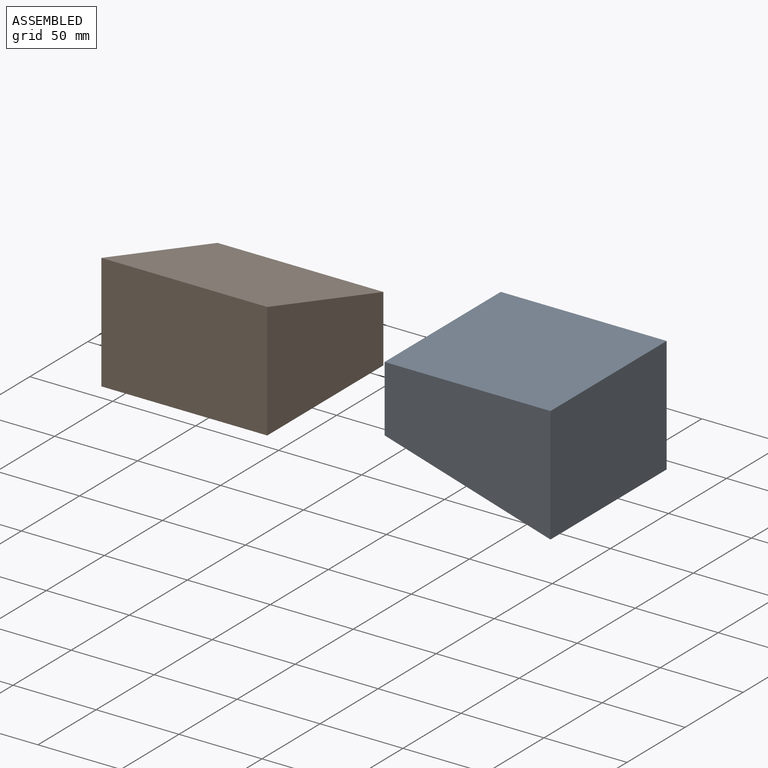
[diagram: assembled view]
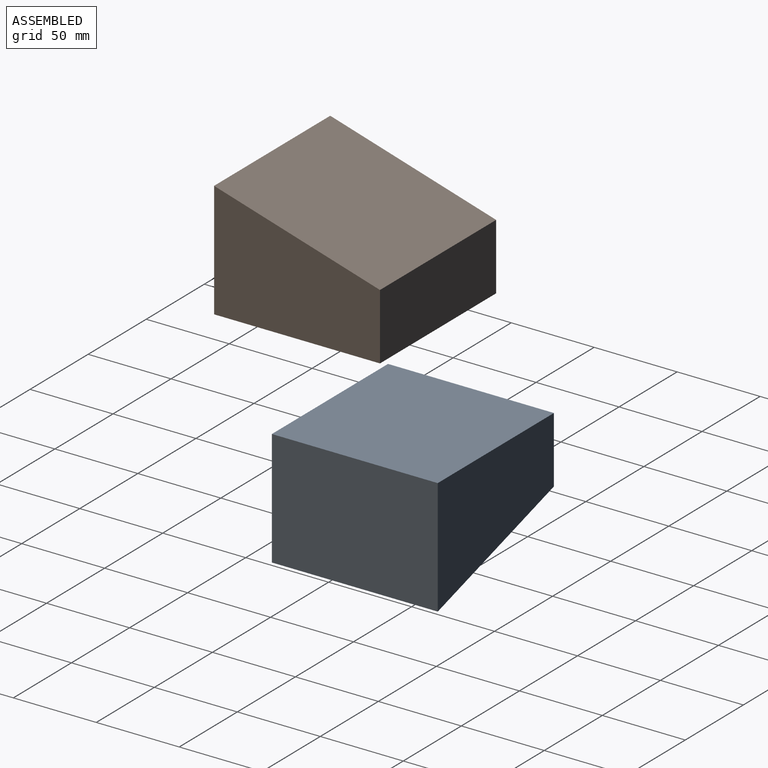
[diagram: assembled view, second angle]
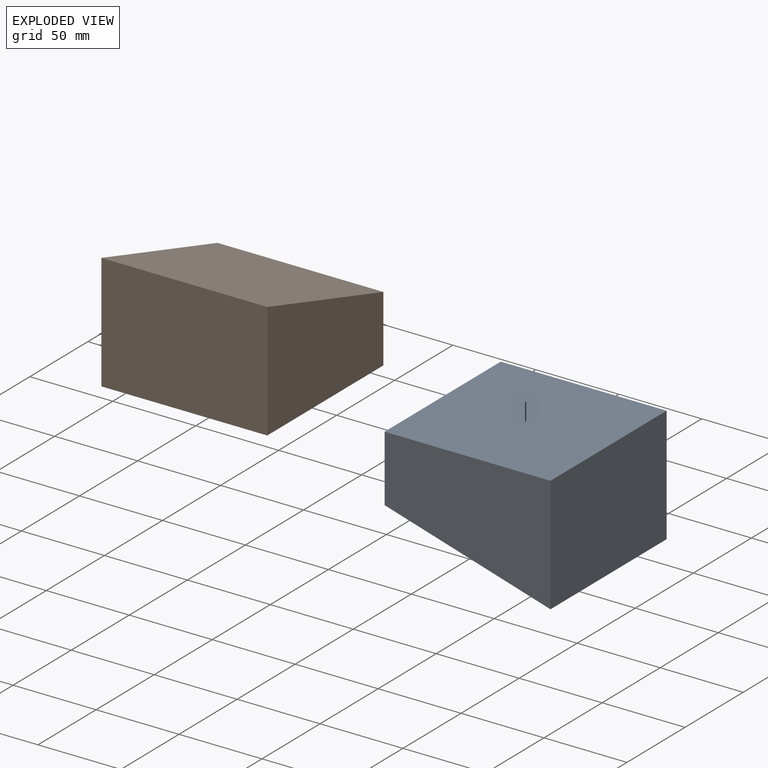
[diagram: exploded view]
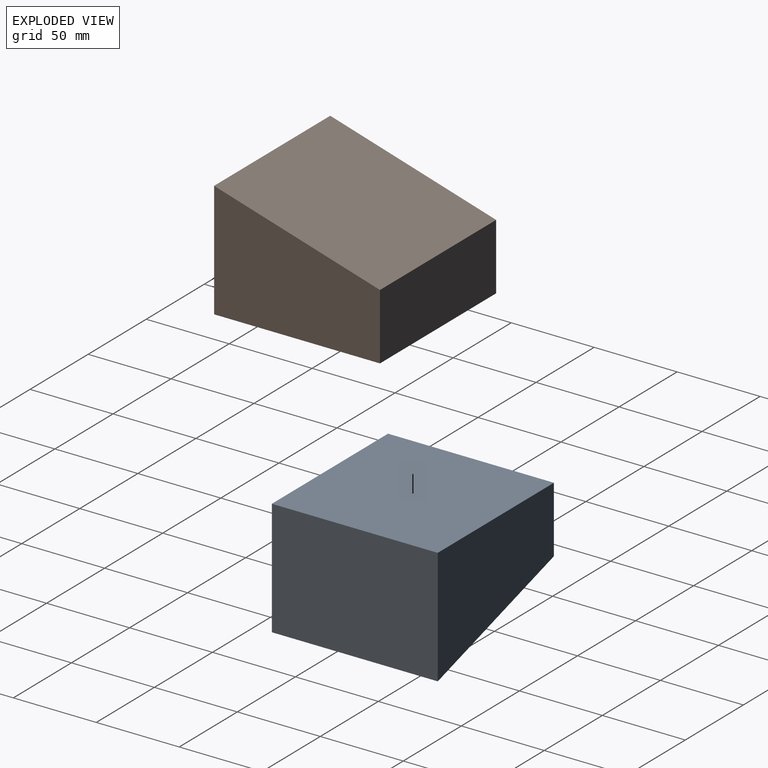
[diagram: exploded view, second angle]
ASSEMBLY  parts=2 mates=2
PART A: 6 faces, bbox 100x100x70 mm
  f0: plane 100x70mm, normal (-1,0,0), area 5500mm2, adj f1,f2,f4,f5
  f1: plane 100x40mm, normal (0,1,0), area 4000mm2, adj f0,f3,f4,f5
  f2: plane 100x70mm, normal (0,-1,0), area 7000mm2, adj f0,f3,f4,f5
  f3: plane 100x70mm, normal (1,0,0), area 5500mm2, adj f1,f2,f4,f5
  f4: plane 100x100mm, normal (0,0,-1), area 10000mm2, adj f0,f1,f2,f3
  f5: plane 100x100mm, normal (0,0.29,0.96), area 10440.3mm2, adj f0,f1,f2,f3
PART B: same geometry as A
PLACE A rot(axis=(0.71,-0.71,0),180deg) t=(272.36,-133.52,76.31)mm
PLACE B t=(174.17,-237.11,76.31)mm
MATE parallel A.f4 <-> B.f4  axis (0,0,1) through (22.36,116.48,76.31)mm
MATE planar A.f4 <-> B.f4  axis (0,0,1) through (22.36,116.48,76.31)mm
